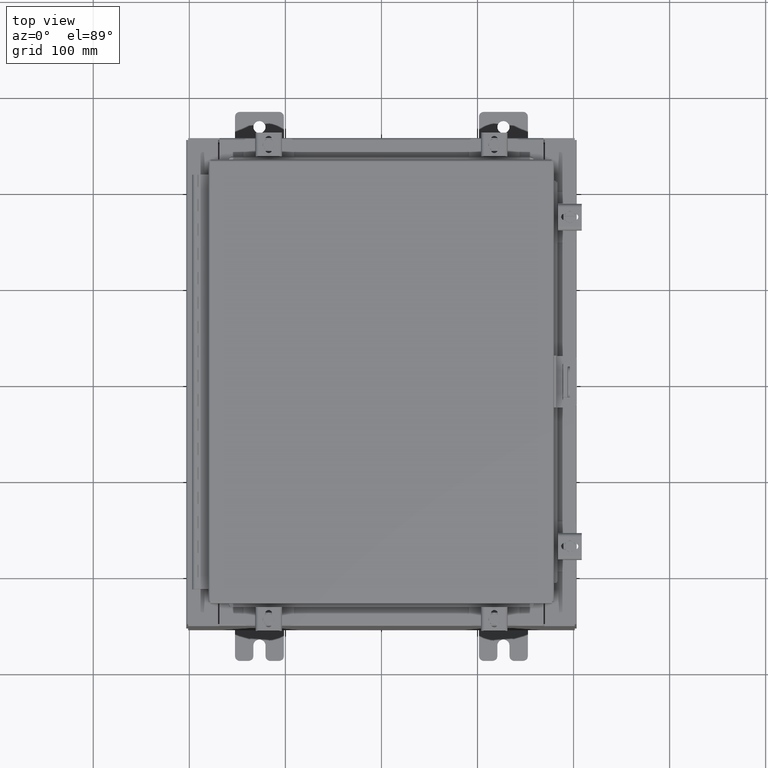
[diagram: clean part render]
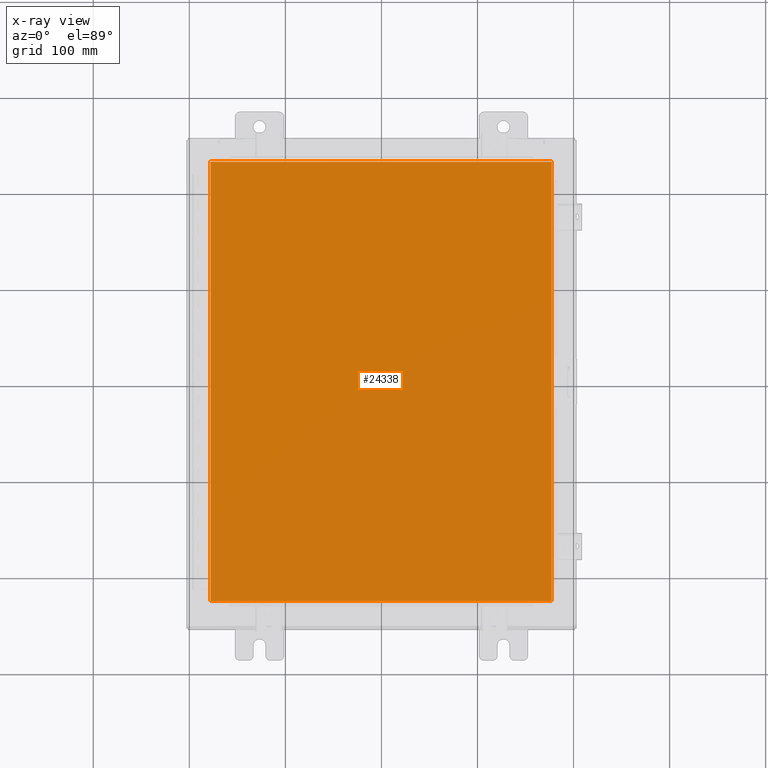
[diagram: x-ray — body ghosted, one internal face saturated and labeled with its STEP entity id]
A machine part, top view, then the same camera in x-ray: the body is ghosted and one INTERNAL B-rep face — a face not visible from any outside direction — is saturated and labeled: STEP entity #24338.
In plain terms, the highlighted planar face has unit normal (0, 0, -1).
Its self-contained STEP definition (entity closure, byte-faithful):
#1855 = DIRECTION ( 'NONE',  ( 0.0000000000000000000, 0.0000000000000000000, -1.000000000000000000 ) ) ;
#3054 = ORIENTED_EDGE ( 'NONE', *, *, #24040, .F. ) ;
#3065 = CARTESIAN_POINT ( 'NONE',  ( -6.990299999999997700, -9.006299999999997800, -0.07470000000000019700 ) ) ;
#3313 = EDGE_CURVE ( 'NONE', #11449, #13461, #20632, .T. ) ;
#4044 = VECTOR ( 'NONE', #7165, 39.37007874015748100 ) ;
#4187 = CARTESIAN_POINT ( 'NONE',  ( -6.990299999999997700, 9.006299999999999500, -0.07470000000000000300 ) ) ;
#4826 = AXIS2_PLACEMENT_3D ( 'NONE', #26728, #1855, #17792 ) ;
#5257 = ORIENTED_EDGE ( 'NONE', *, *, #3313, .F. ) ;
#5660 = VERTEX_POINT ( 'NONE', #4187 ) ;
#6255 = ORIENTED_EDGE ( 'NONE', *, *, #19819, .F. ) ;
#6306 = CARTESIAN_POINT ( 'NONE',  ( 6.990300000000002200, -9.006299999999997800, -0.07470000000000000300 ) ) ;
#7165 = DIRECTION ( 'NONE',  ( -1.000000000000000000, -0.0000000000000000000, -0.0000000000000000000 ) ) ;
#10110 = LINE ( 'NONE', #19191, #4044 ) ;
#10132 = CARTESIAN_POINT ( 'NONE',  ( 6.990300000000001300, 9.006300000000001300, -0.07470000000000000300 ) ) ;
#11040 = LINE ( 'NONE', #3065, #21715 ) ;
#11217 = CARTESIAN_POINT ( 'NONE',  ( -6.990299999999996800, -9.006299999999997800, -0.07470000000000000300 ) ) ;
#11449 = VERTEX_POINT ( 'NONE', #6306 ) ;
#13461 = VERTEX_POINT ( 'NONE', #10132 ) ;
#15145 = CARTESIAN_POINT ( 'NONE',  ( -6.990299999999997700, 9.006300000000001300, -0.07470000000000019700 ) ) ;
#15520 = PLANE ( 'NONE',  #4826 ) ;
#16734 = DIRECTION ( 'NONE',  ( 1.000000000000000000, -0.0000000000000000000, -0.0000000000000000000 ) ) ;
#17792 = DIRECTION ( 'NONE',  ( -1.000000000000000000, 0.0000000000000000000, -0.0000000000000000000 ) ) ;
#18165 = CARTESIAN_POINT ( 'NONE',  ( 6.990300000000002200, -9.006299999999997800, -0.07470000000000019700 ) ) ;
#19186 = FACE_OUTER_BOUND ( 'NONE', #19616, .T. ) ;
#19191 = CARTESIAN_POINT ( 'NONE',  ( 6.990300000000002200, 9.006300000000001300, -0.07470000000000073800 ) ) ;
#19616 = EDGE_LOOP ( 'NONE', ( #5257, #3054, #19932, #6255 ) ) ;
#19819 = EDGE_CURVE ( 'NONE', #13461, #5660, #10110, .T. ) ;
#19923 = VECTOR ( 'NONE', #20770, 39.37007874015748100 ) ;
#19932 = ORIENTED_EDGE ( 'NONE', *, *, #21876, .F. ) ;
#20632 = LINE ( 'NONE', #18165, #19923 ) ;
#20770 = DIRECTION ( 'NONE',  ( 0.0000000000000000000, 1.000000000000000000, 0.0000000000000000000 ) ) ;
#21714 = VERTEX_POINT ( 'NONE', #11217 ) ;
#21715 = VECTOR ( 'NONE', #16734, 39.37007874015748100 ) ;
#21876 = EDGE_CURVE ( 'NONE', #5660, #21714, #28229, .T. ) ;
#24040 = EDGE_CURVE ( 'NONE', #21714, #11449, #11040, .T. ) ;
#24258 = DIRECTION ( 'NONE',  ( 0.0000000000000000000, -1.000000000000000000, 0.0000000000000000000 ) ) ;
#24338 = ADVANCED_FACE ( 'NONE', ( #19186 ), #15520, .T. ) ;
#26728 = CARTESIAN_POINT ( 'NONE',  ( 0.0000000000000000000, 0.0000000000000000000, -0.07470000000000000300 ) ) ;
#27536 = VECTOR ( 'NONE', #24258, 39.37007874015748100 ) ;
#28229 = LINE ( 'NONE', #15145, #27536 ) ;